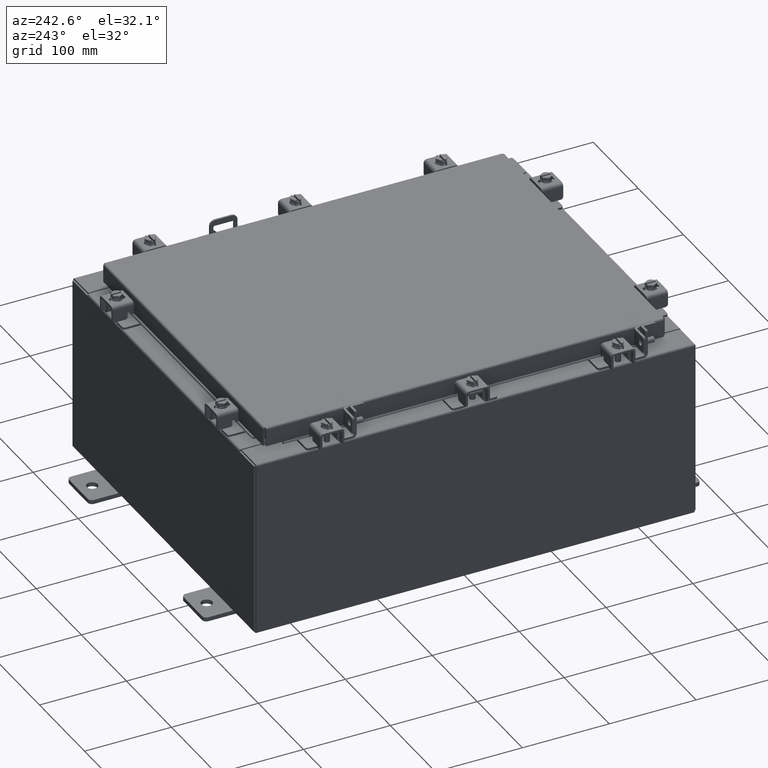
[diagram: clean part render]
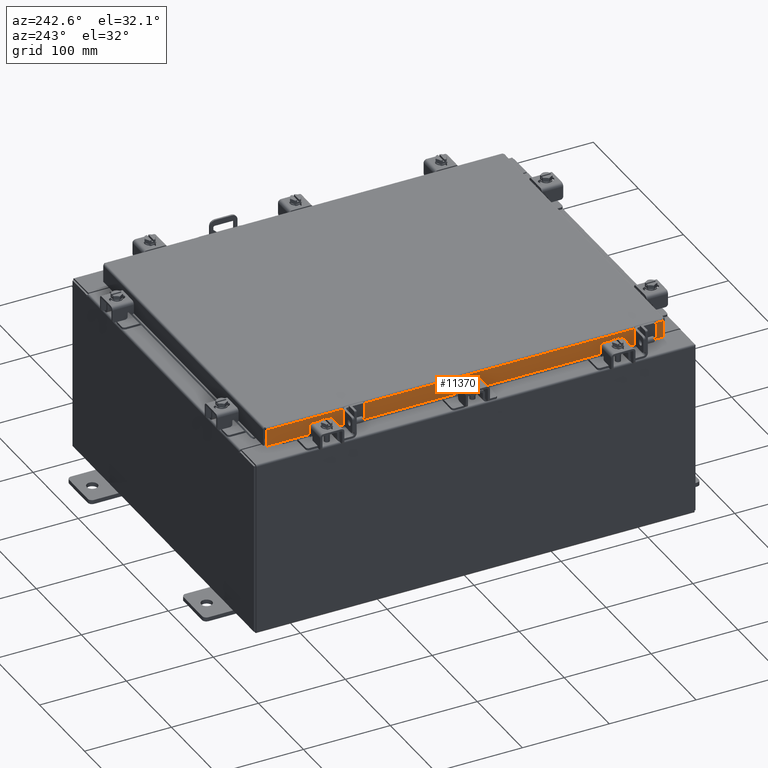
[diagram: same view with one face highlighted and labeled with its STEP entity id]
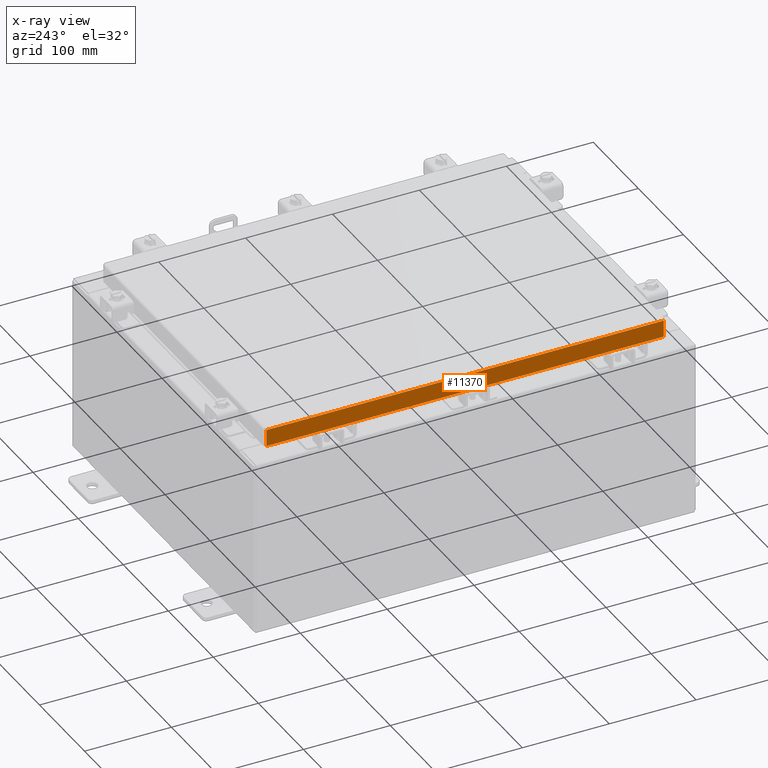
[diagram: x-ray of the same camera — body ghosted, the highlighted face saturated]
A machine part, auxiliary view. The second image highlights one B-rep face of the part: STEP entity #11370.
The next image is the same camera in x-ray: the body ghosted, the highlighted face saturated — about 0% of this face is hidden behind the body in this view.
In plain terms, the highlighted planar face has unit normal (1, 0, -0).
Its self-contained STEP definition (entity closure, byte-faithful):
#362 = DIRECTION ( 'NONE',  ( 1.000000000000000000, 3.387180227794633400E-031, -2.818880942772360100E-015 ) ) ;
#907 = DIRECTION ( 'NONE',  ( -0.0000000000000000000, 1.000000000000000000, -0.0000000000000000000 ) ) ;
#1738 = VECTOR ( 'NONE', #18968, 39.37007874015748100 ) ;
#2019 = LINE ( 'NONE', #11319, #2556 ) ;
#2028 = VECTOR ( 'NONE', #13759, 39.37007874015748100 ) ;
#2556 = VECTOR ( 'NONE', #907, 39.37007874015748100 ) ;
#3282 = CARTESIAN_POINT ( 'NONE',  ( -7.078000000000005600, 9.005157864376270600, -0.8499999999999975400 ) ) ;
#3329 = VERTEX_POINT ( 'NONE', #21303 ) ;
#3879 = DIRECTION ( 'NONE',  ( 4.379057701015054300E-047, 1.000000000000000000, 1.201604571657912400E-016 ) ) ;
#5123 = VECTOR ( 'NONE', #20644, 39.37007874015748100 ) ;
#5492 = CARTESIAN_POINT ( 'NONE',  ( -7.078000000000005600, -9.005157864376265300, -0.8499999999999996400 ) ) ;
#5949 = ORIENTED_EDGE ( 'NONE', *, *, #20516, .F. ) ;
#6718 = CARTESIAN_POINT ( 'NONE',  ( -7.078000000000003800, 9.005157864376265300, 8.309553424256679200E-014 ) ) ;
#6887 = EDGE_CURVE ( 'NONE', #9657, #9738, #10230, .T. ) ;
#8152 = VECTOR ( 'NONE', #19794, 39.37007874015748100 ) ;
#8707 = ORIENTED_EDGE ( 'NONE', *, *, #10440, .F. ) ;
#9657 = VERTEX_POINT ( 'NONE', #22105 ) ;
#9738 = VERTEX_POINT ( 'NONE', #3282 ) ;
#10230 = LINE ( 'NONE', #6718, #5123 ) ;
#10437 = AXIS2_PLACEMENT_3D ( 'NONE', #19494, #362, #12550 ) ;
#10440 = EDGE_CURVE ( 'NONE', #11086, #11327, #17031, .T. ) ;
#10770 = PLANE ( 'NONE',  #10437 ) ;
#11086 = VERTEX_POINT ( 'NONE', #14047 ) ;
#11319 = CARTESIAN_POINT ( 'NONE',  ( -7.078000000000001200, -8.255157864376263500, -0.8500000000000023100 ) ) ;
#11327 = VERTEX_POINT ( 'NONE', #5492 ) ;
#11370 = ADVANCED_FACE ( 'NONE', ( #14999 ), #10770, .F. ) ;
#11455 = EDGE_CURVE ( 'NONE', #9657, #11086, #12826, .T. ) ;
#11506 = LINE ( 'NONE', #18897, #1738 ) ;
#12550 = DIRECTION ( 'NONE',  ( -2.818880942772360100E-015, 0.0000000000000000000, -1.000000000000000000 ) ) ;
#12826 = LINE ( 'NONE', #14551, #8152 ) ;
#13759 = DIRECTION ( 'NONE',  ( -2.818880942772360100E-015, 6.982962677686265900E-015, -1.000000000000000000 ) ) ;
#14047 = CARTESIAN_POINT ( 'NONE',  ( -7.078000000000003800, -9.005157864376270600, -0.08770000000000007000 ) ) ;
#14551 = CARTESIAN_POINT ( 'NONE',  ( -7.078000000000003800, -9.094000000000003000, -0.08770000000000007000 ) ) ;
#14804 = VERTEX_POINT ( 'NONE', #16043 ) ;
#14999 = FACE_OUTER_BOUND ( 'NONE', #18188, .T. ) ;
#16023 = CARTESIAN_POINT ( 'NONE',  ( -7.078000000000005600, -9.094000000000003000, -0.8499999999999996400 ) ) ;
#16043 = CARTESIAN_POINT ( 'NONE',  ( -7.078000000000001200, -8.255157864376261800, -0.8500000000000023100 ) ) ;
#16680 = EDGE_CURVE ( 'NONE', #3329, #9738, #11506, .T. ) ;
#16952 = VECTOR ( 'NONE', #3879, 39.37007874015748100 ) ;
#17031 = LINE ( 'NONE', #22372, #2028 ) ;
#17360 = ORIENTED_EDGE ( 'NONE', *, *, #11455, .F. ) ;
#18188 = EDGE_LOOP ( 'NONE', ( #17360, #20559, #18774, #18432, #5949, #8707 ) ) ;
#18432 = ORIENTED_EDGE ( 'NONE', *, *, #19042, .F. ) ;
#18774 = ORIENTED_EDGE ( 'NONE', *, *, #16680, .F. ) ;
#18897 = CARTESIAN_POINT ( 'NONE',  ( -7.078000000000005600, -9.094000000000003000, -0.8499999999999996400 ) ) ;
#18968 = DIRECTION ( 'NONE',  ( 4.379057701015054300E-047, 1.000000000000000000, 1.201604571657912400E-016 ) ) ;
#19042 = EDGE_CURVE ( 'NONE', #14804, #3329, #2019, .T. ) ;
#19494 = CARTESIAN_POINT ( 'NONE',  ( -7.078000000000003800, -2.397446165233042600E-030, 2.021285296895435800E-014 ) ) ;
#19794 = DIRECTION ( 'NONE',  ( 3.387180227794633400E-031, -1.000000000000000000, -9.232666117091638000E-046 ) ) ;
#20516 = EDGE_CURVE ( 'NONE', #11327, #14804, #20993, .T. ) ;
#20559 = ORIENTED_EDGE ( 'NONE', *, *, #6887, .T. ) ;
#20644 = DIRECTION ( 'NONE',  ( -2.818880942772360100E-015, 6.982962677686265900E-015, -1.000000000000000000 ) ) ;
#20993 = LINE ( 'NONE', #16023, #16952 ) ;
#21303 = CARTESIAN_POINT ( 'NONE',  ( -7.078000000000001200, 8.255157864376267100, -0.8500000000000023100 ) ) ;
#22105 = CARTESIAN_POINT ( 'NONE',  ( -7.078000000000003800, 9.005157864376265300, -0.08770000000000007000 ) ) ;
#22372 = CARTESIAN_POINT ( 'NONE',  ( -7.078000000000003800, -9.005157864376270600, -0.07469999999999978000 ) ) ;